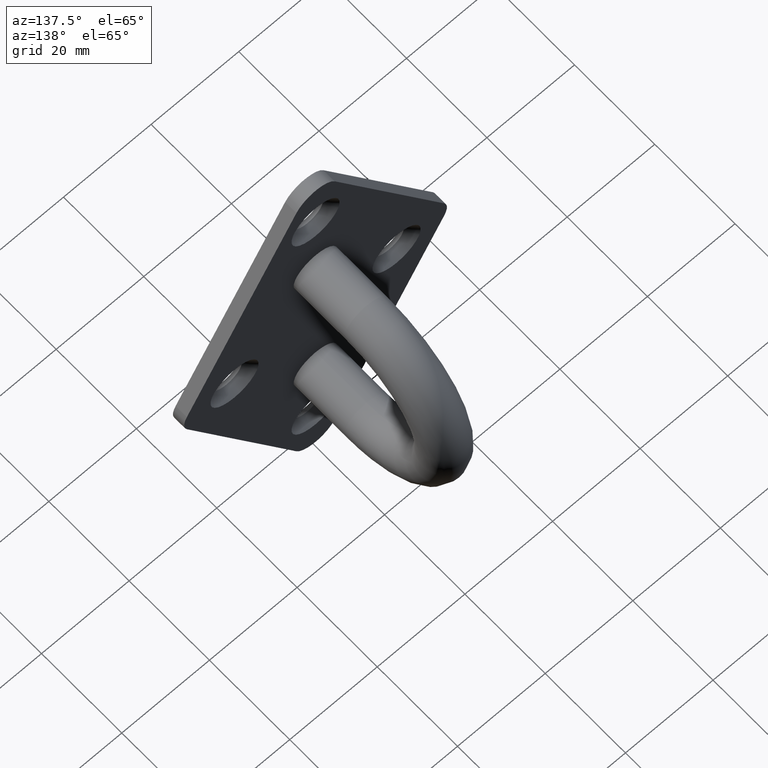
[diagram: clean part render]
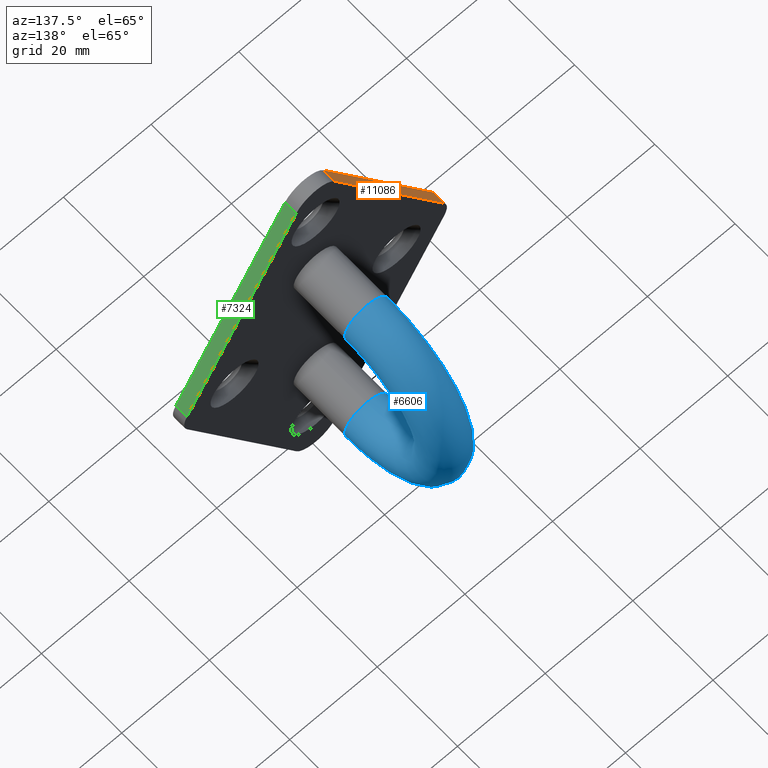
[diagram: same view with three faces highlighted in distinct colors, each labeled with its STEP entity id]
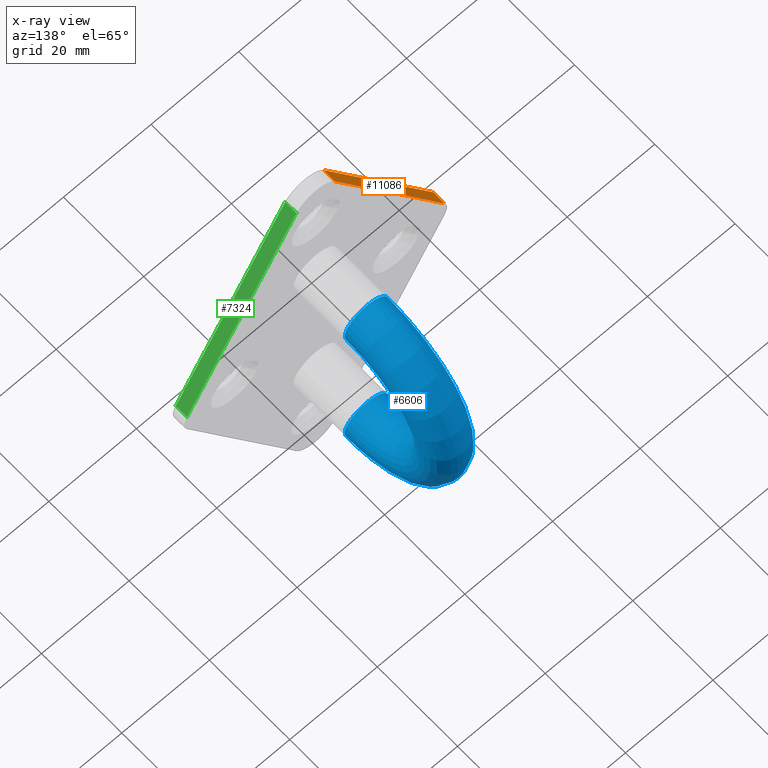
[diagram: x-ray of the same camera — body ghosted, the three highlighted faces saturated]
A machine part, auxiliary view with three faces highlighted in distinct colors.
The next image is the same camera in x-ray (body ghosted, the three faces saturated) — at least one of them is partly hidden behind the body in this view.
Their STEP definitions:

[orange] entity #11086 — the highlighted planar face has unit normal (0.8742, 0, -0.4856).
#70 = VECTOR ( 'NONE', #7104, 1000.000000000000114 ) ;
#169 = PLANE ( 'NONE',  #4990 ) ;
#743 = DIRECTION ( 'NONE',  ( -0.000000000000000000, -1.000000000000000000, -0.000000000000000000 ) ) ;
#835 = FACE_OUTER_BOUND ( 'NONE', #1090, .T. ) ;
#1090 = EDGE_LOOP ( 'NONE', ( #10170, #9262, #13109, #2567 ) ) ;
#1321 = VECTOR ( 'NONE', #1344, 1000.000000000000000 ) ;
#1344 = DIRECTION ( 'NONE',  ( -0.000000000000000000, -1.000000000000000000, -0.000000000000000000 ) ) ;
#1392 = VERTEX_POINT ( 'NONE', #12918 ) ;
#1776 = LINE ( 'NONE', #11659, #8298 ) ;
#2040 = CARTESIAN_POINT ( 'NONE',  ( -4.370786380607936117, 2.799999999999999822, 47.42821465589322116 ) ) ;
#2567 = ORIENTED_EDGE ( 'NONE', *, *, #8310, .T. ) ;
#2790 = LINE ( 'NONE', #9070, #70 ) ;
#3443 = EDGE_CURVE ( 'NONE', #11762, #9909, #6097, .T. ) ;
#3911 = CARTESIAN_POINT ( 'NONE',  ( -4.370786380607936117, 2.799999999999999822, 47.42821465589322116 ) ) ;
#3930 = CARTESIAN_POINT ( 'NONE',  ( -29.37078638060769720, 2.799999999999999822, 2.428214655893150997 ) ) ;
#4585 = DIRECTION ( 'NONE',  ( -0.4856429311786299996, 0.000000000000000000, -0.8741572761215389287 ) ) ;
#4990 = AXIS2_PLACEMENT_3D ( 'NONE', #8286, #12544, #4585 ) ;
#5168 = VECTOR ( 'NONE', #743, 1000.000000000000000 ) ;
#5323 = LINE ( 'NONE', #3930, #5168 ) ;
#5546 = DIRECTION ( 'NONE',  ( 0.4856429311786300551, -0.000000000000000000, 0.8741572761215389287 ) ) ;
#6097 = LINE ( 'NONE', #2040, #1321 ) ;
#6538 = EDGE_CURVE ( 'NONE', #1392, #11762, #1776, .T. ) ;
#7104 = DIRECTION ( 'NONE',  ( 0.4856429311786300551, -0.000000000000000000, 0.8741572761215389287 ) ) ;
#7788 = CARTESIAN_POINT ( 'NONE',  ( -29.37078638060769720, 0.000000000000000000, 2.428214655893150997 ) ) ;
#8286 = CARTESIAN_POINT ( 'NONE',  ( -4.370786380607830424, 2.799999999999999822, 47.42821465589315721 ) ) ;
#8298 = VECTOR ( 'NONE', #5546, 1000.000000000000114 ) ;
#8310 = EDGE_CURVE ( 'NONE', #1392, #12409, #5323, .T. ) ;
#8662 = EDGE_CURVE ( 'NONE', #12409, #9909, #2790, .T. ) ;
#9070 = CARTESIAN_POINT ( 'NONE',  ( -4.370786380607830424, 0.000000000000000000, 47.42821465589315721 ) ) ;
#9262 = ORIENTED_EDGE ( 'NONE', *, *, #3443, .F. ) ;
#9909 = VERTEX_POINT ( 'NONE', #10740 ) ;
#10170 = ORIENTED_EDGE ( 'NONE', *, *, #8662, .T. ) ;
#10740 = CARTESIAN_POINT ( 'NONE',  ( -4.370786380607936117, 0.000000000000000000, 47.42821465589322116 ) ) ;
#11086 = ADVANCED_FACE ( 'NONE', ( #835 ), #169, .F. ) ;
#11659 = CARTESIAN_POINT ( 'NONE',  ( -4.370786380607830424, 2.799999999999999822, 47.42821465589315721 ) ) ;
#11762 = VERTEX_POINT ( 'NONE', #3911 ) ;
#12409 = VERTEX_POINT ( 'NONE', #7788 ) ;
#12544 = DIRECTION ( 'NONE',  ( 0.8741572761215389287, 0.000000000000000000, -0.4856429311786299996 ) ) ;
#12918 = CARTESIAN_POINT ( 'NONE',  ( -29.37078638060769720, 2.799999999999999822, 2.428214655893150997 ) ) ;
#13109 = ORIENTED_EDGE ( 'NONE', *, *, #6538, .F. ) ;

[blue] entity #6606 — the highlighted toroidal blend (fillet) surface has major radius 19.3 mm and minor (blend) radius 5 mm.
#96 = CARTESIAN_POINT ( 'NONE',  ( 0.000000000000000000, 15.50000000000000000, 19.29999999999999716 ) ) ;
#184 = CIRCLE ( 'NONE', #5192, 5.000000000000000888 ) ;
#266 = EDGE_LOOP ( 'NONE', ( #12535 ) ) ;
#528 = DIRECTION ( 'NONE',  ( 0.000000000000000000, 0.000000000000000000, 1.000000000000000000 ) ) ;
#1188 = AXIS2_PLACEMENT_3D ( 'NONE', #6151, #8213, #3123 ) ;
#2823 = AXIS2_PLACEMENT_3D ( 'NONE', #96, #10144, #12265 ) ;
#3123 = DIRECTION ( 'NONE',  ( 0.000000000000000000, 0.000000000000000000, 1.000000000000000000 ) ) ;
#3466 = EDGE_LOOP ( 'NONE', ( #5207 ) ) ;
#3500 = CARTESIAN_POINT ( 'NONE',  ( 0.000000000000000000, 15.49999999999999822, -19.29999999999999716 ) ) ;
#4216 = EDGE_CURVE ( 'NONE', #4483, #4483, #184, .T. ) ;
#4483 = VERTEX_POINT ( 'NONE', #5488 ) ;
#5192 = AXIS2_PLACEMENT_3D ( 'NONE', #3500, #7619, #528 ) ;
#5207 = ORIENTED_EDGE ( 'NONE', *, *, #7428, .F. ) ;
#5263 = FACE_OUTER_BOUND ( 'NONE', #3466, .T. ) ;
#5488 = CARTESIAN_POINT ( 'NONE',  ( 0.000000000000000000, 15.49999999999999822, -14.29999999999999716 ) ) ;
#5575 = CARTESIAN_POINT ( 'NONE',  ( 0.000000000000000000, 15.50000000000000000, 14.29999999999999716 ) ) ;
#6151 = CARTESIAN_POINT ( 'NONE',  ( 0.000000000000000000, 15.49999999999999822, 0.000000000000000000 ) ) ;
#6606 = ADVANCED_FACE ( 'NONE', ( #5263, #11450 ), #12279, .T. ) ;
#7428 = EDGE_CURVE ( 'NONE', #10242, #10242, #11366, .T. ) ;
#7619 = DIRECTION ( 'NONE',  ( 0.000000000000000000, 1.000000000000000000, 1.224646799147353207E-16 ) ) ;
#8213 = DIRECTION ( 'NONE',  ( -1.000000000000000000, -0.000000000000000000, 0.000000000000000000 ) ) ;
#10144 = DIRECTION ( 'NONE',  ( 0.000000000000000000, -1.000000000000000000, 0.000000000000000000 ) ) ;
#10242 = VERTEX_POINT ( 'NONE', #5575 ) ;
#11366 = CIRCLE ( 'NONE', #2823, 5.000000000000000888 ) ;
#11450 = FACE_OUTER_BOUND ( 'NONE', #266, .T. ) ;
#12265 = DIRECTION ( 'NONE',  ( 0.000000000000000000, 0.000000000000000000, -1.000000000000000000 ) ) ;
#12279 = TOROIDAL_SURFACE ( 'NONE', #1188, 19.29999999999999716, 5.000000000000000888 ) ;
#12535 = ORIENTED_EDGE ( 'NONE', *, *, #4216, .T. ) ;

[green] entity #7324 — the highlighted planar face has unit normal (-0.8742, 0, -0.4856).
#12 = LINE ( 'NONE', #4911, #10510 ) ;
#414 = ORIENTED_EDGE ( 'NONE', *, *, #7005, .T. ) ;
#556 = CARTESIAN_POINT ( 'NONE',  ( 4.370786380607849964, 2.799999999999999822, 47.42821465589315721 ) ) ;
#1173 = ORIENTED_EDGE ( 'NONE', *, *, #2962, .F. ) ;
#1176 = CARTESIAN_POINT ( 'NONE',  ( 29.37078638060770430, 2.799999999999999822, 2.428214655893143448 ) ) ;
#2405 = CARTESIAN_POINT ( 'NONE',  ( 29.37078638060770430, 2.799999999999999822, 2.428214655893143448 ) ) ;
#2962 = EDGE_CURVE ( 'NONE', #4549, #5529, #5005, .T. ) ;
#3583 = DIRECTION ( 'NONE',  ( 0.4856429311786298331, 0.000000000000000000, -0.8741572761215390397 ) ) ;
#4051 = DIRECTION ( 'NONE',  ( -0.8741572761215390397, 0.000000000000000000, -0.4856429311786297776 ) ) ;
#4355 = AXIS2_PLACEMENT_3D ( 'NONE', #6239, #4051, #5138 ) ;
#4549 = VERTEX_POINT ( 'NONE', #10452 ) ;
#4833 = VECTOR ( 'NONE', #3583, 1000.000000000000114 ) ;
#4911 = CARTESIAN_POINT ( 'NONE',  ( 4.370786380607849964, 2.799999999999999822, 47.42821465589315721 ) ) ;
#4918 = CARTESIAN_POINT ( 'NONE',  ( 29.37078638060770430, 0.000000000000000000, 2.428214655893143448 ) ) ;
#5005 = LINE ( 'NONE', #556, #4833 ) ;
#5138 = DIRECTION ( 'NONE',  ( -0.4856429311786297776, 0.000000000000000000, 0.8741572761215390397 ) ) ;
#5529 = VERTEX_POINT ( 'NONE', #1176 ) ;
#6239 = CARTESIAN_POINT ( 'NONE',  ( 4.370786380607849964, 2.799999999999999822, 47.42821465589315721 ) ) ;
#7005 = EDGE_CURVE ( 'NONE', #4549, #11260, #12, .T. ) ;
#7209 = VECTOR ( 'NONE', #12503, 1000.000000000000114 ) ;
#7324 = ADVANCED_FACE ( 'NONE', ( #12345 ), #11185, .F. ) ;
#8039 = DIRECTION ( 'NONE',  ( -0.000000000000000000, -1.000000000000000000, -0.000000000000000000 ) ) ;
#8081 = EDGE_CURVE ( 'NONE', #5529, #11629, #10910, .T. ) ;
#8398 = EDGE_LOOP ( 'NONE', ( #12300, #9132, #1173, #414 ) ) ;
#9132 = ORIENTED_EDGE ( 'NONE', *, *, #8081, .F. ) ;
#9574 = CARTESIAN_POINT ( 'NONE',  ( 4.370786380607849964, 0.000000000000000000, 47.42821465589315721 ) ) ;
#9642 = DIRECTION ( 'NONE',  ( -0.000000000000000000, -1.000000000000000000, -0.000000000000000000 ) ) ;
#10391 = LINE ( 'NONE', #10458, #7209 ) ;
#10452 = CARTESIAN_POINT ( 'NONE',  ( 4.370786380607849964, 2.799999999999999822, 47.42821465589315721 ) ) ;
#10458 = CARTESIAN_POINT ( 'NONE',  ( 4.370786380607849964, 0.000000000000000000, 47.42821465589315721 ) ) ;
#10510 = VECTOR ( 'NONE', #8039, 1000.000000000000000 ) ;
#10910 = LINE ( 'NONE', #2405, #12336 ) ;
#11185 = PLANE ( 'NONE',  #4355 ) ;
#11260 = VERTEX_POINT ( 'NONE', #9574 ) ;
#11629 = VERTEX_POINT ( 'NONE', #4918 ) ;
#12300 = ORIENTED_EDGE ( 'NONE', *, *, #13161, .T. ) ;
#12336 = VECTOR ( 'NONE', #9642, 1000.000000000000000 ) ;
#12345 = FACE_OUTER_BOUND ( 'NONE', #8398, .T. ) ;
#12503 = DIRECTION ( 'NONE',  ( 0.4856429311786298331, 0.000000000000000000, -0.8741572761215390397 ) ) ;
#13161 = EDGE_CURVE ( 'NONE', #11260, #11629, #10391, .T. ) ;